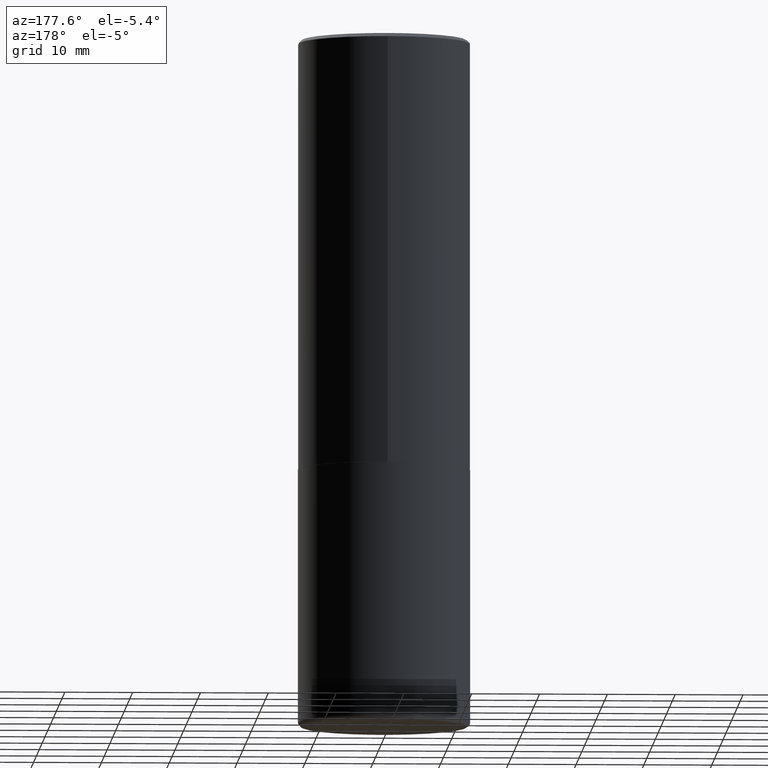
[diagram: clean part render]
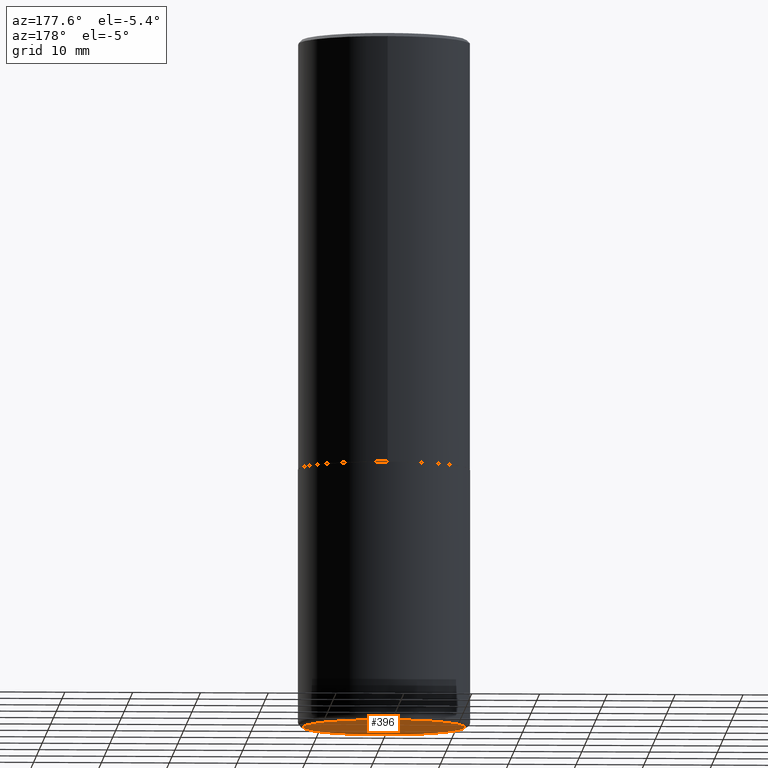
[diagram: same view with one face highlighted and labeled with its STEP entity id]
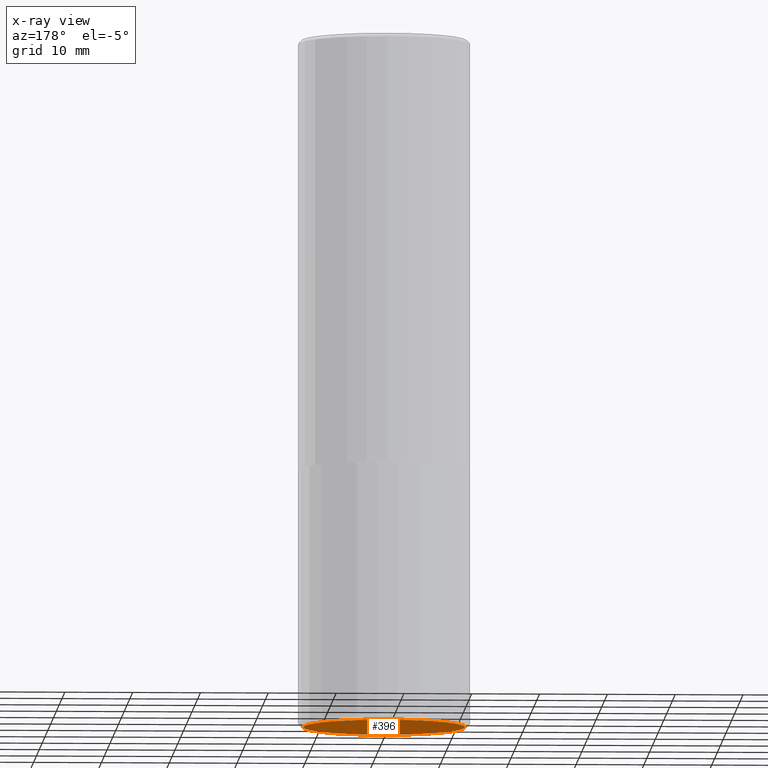
[diagram: x-ray of the same camera — body ghosted, the highlighted face saturated]
A machine part, auxiliary view. The second image highlights one B-rep face of the part: STEP entity #396.
The next image is the same camera in x-ray: the body ghosted, the highlighted face saturated — about 0% of this face is hidden behind the body in this view.
In plain terms, the highlighted planar face has unit normal (0, -0, -1).
Its self-contained STEP definition (entity closure, byte-faithful):
#21 = FACE_OUTER_BOUND ( 'NONE', #300, .T. ) ;
#34 = ORIENTED_EDGE ( 'NONE', *, *, #305, .F. ) ;
#51 = VERTEX_POINT ( 'NONE', #317 ) ;
#79 = AXIS2_PLACEMENT_3D ( 'NONE', #182, #350, #414 ) ;
#80 = DIRECTION ( 'NONE',  ( -2.445468806185136597E-29, 3.491481338843145583E-15, 1.000000000000000000 ) ) ;
#109 = DIRECTION ( 'NONE',  ( 1.000000000000000000, -6.982962677686267499E-15, 0.000000000000000000 ) ) ;
#128 = AXIS2_PLACEMENT_3D ( 'NONE', #240, #401, #109 ) ;
#155 = CARTESIAN_POINT ( 'NONE',  ( 0.4699999999999999734, -1.724791781388512737E-14, -4.000000000000000000 ) ) ;
#156 = PLANE ( 'NONE',  #79 ) ;
#182 = CARTESIAN_POINT ( 'NONE',  ( 9.781875224740546387E-29, -1.396592535537258233E-14, -4.000000000000000000 ) ) ;
#196 = ORIENTED_EDGE ( 'NONE', *, *, #217, .F. ) ;
#206 = DIRECTION ( 'NONE',  ( 1.000000000000000000, -6.982962677686267499E-15, 0.000000000000000000 ) ) ;
#217 = EDGE_CURVE ( 'NONE', #51, #366, #311, .T. ) ;
#240 = CARTESIAN_POINT ( 'NONE',  ( 9.781875224740546387E-29, -1.396592535537258233E-14, -4.000000000000000000 ) ) ;
#244 = CIRCLE ( 'NONE', #338, 0.4699999999999999734 ) ;
#300 = EDGE_LOOP ( 'NONE', ( #34, #196 ) ) ;
#305 = EDGE_CURVE ( 'NONE', #366, #51, #244, .T. ) ;
#311 = CIRCLE ( 'NONE', #128, 0.4699999999999999734 ) ;
#317 = CARTESIAN_POINT ( 'NONE',  ( -0.4699999999999999734, -1.046742086685344905E-14, -4.000000000000000000 ) ) ;
#338 = AXIS2_PLACEMENT_3D ( 'NONE', #378, #80, #206 ) ;
#350 = DIRECTION ( 'NONE',  ( 2.438088387897960049E-29, -3.491481338843145188E-15, -1.000000000000000000 ) ) ;
#366 = VERTEX_POINT ( 'NONE', #155 ) ;
#378 = CARTESIAN_POINT ( 'NONE',  ( 9.781875224740546387E-29, -1.396592535537258233E-14, -4.000000000000000000 ) ) ;
#396 = ADVANCED_FACE ( 'NONE', ( #21 ), #156, .T. ) ;
#401 = DIRECTION ( 'NONE',  ( -2.445468806185136597E-29, 3.491481338843145583E-15, 1.000000000000000000 ) ) ;
#414 = DIRECTION ( 'NONE',  ( -1.000000000000000000, 6.982962677686265922E-15, -4.876176775795935793E-29 ) ) ;